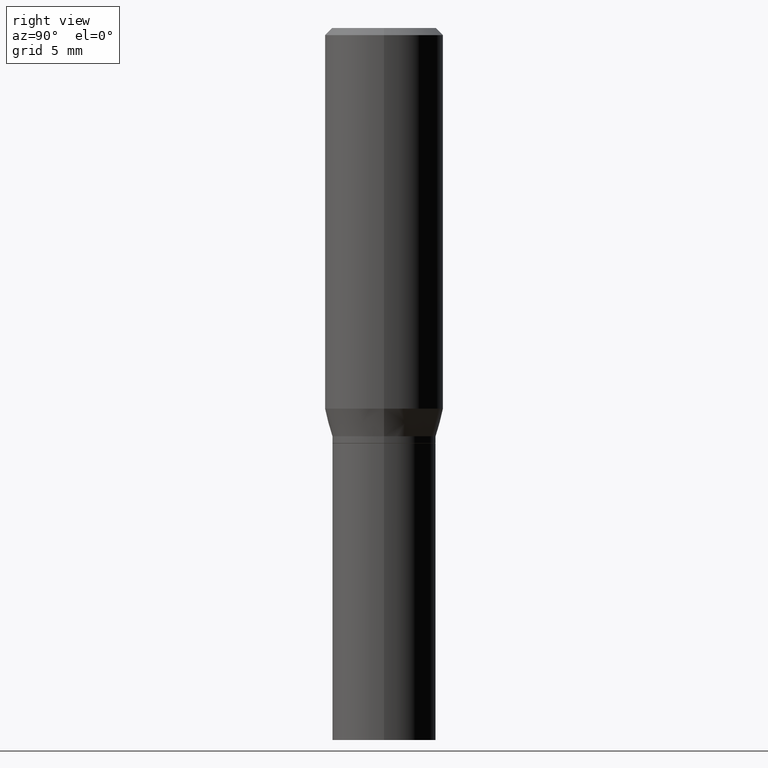
[diagram: clean part render]
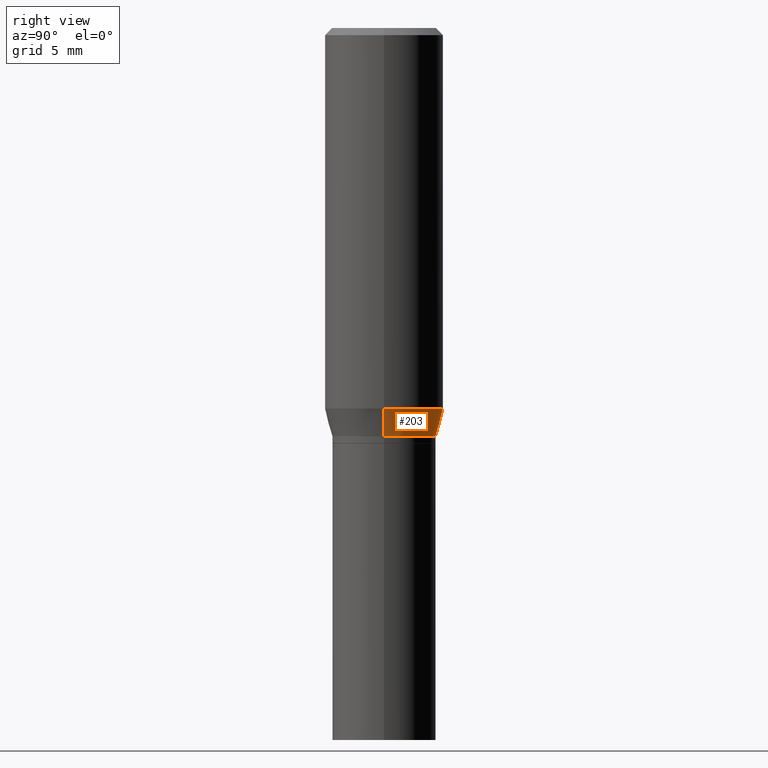
[diagram: same view with one face highlighted and labeled with its STEP entity id]
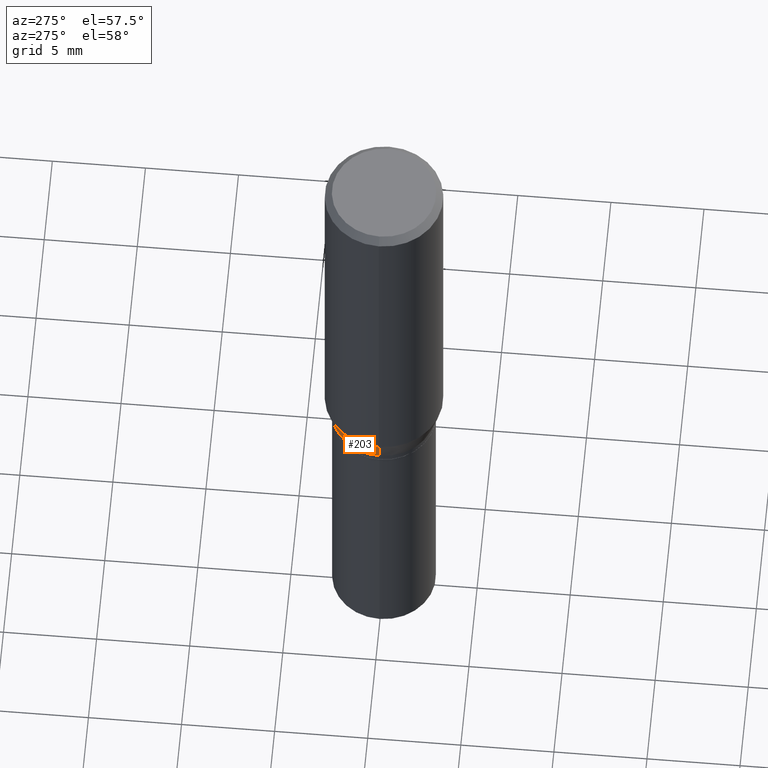
[diagram: same view with one face highlighted and labeled with its STEP entity id]
A machine part, right view. The second image highlights one B-rep face of the part: STEP entity #203.
A second angle (auxiliary view) of the same face is appended — the face is thin or edge-on in the first view.
In plain terms, the highlighted conical surface has half-angle 15 deg.
Its self-contained STEP definition (entity closure, byte-faithful):
#34 = VERTEX_POINT ( 'NONE', #192 ) ;
#35 = DIRECTION ( 'NONE',  ( 1.000000000000000000, -6.982962677686266711E-15, 0.000000000000000000 ) ) ;
#39 = LINE ( 'NONE', #426, #116 ) ;
#44 = ORIENTED_EDGE ( 'NONE', *, *, #46, .T. ) ;
#46 = EDGE_CURVE ( 'NONE', #34, #198, #225, .T. ) ;
#47 = EDGE_LOOP ( 'NONE', ( #44, #256, #381, #331 ) ) ;
#54 = CARTESIAN_POINT ( 'NONE',  ( -0.1094000000000000389, -2.068280856242386505E-15, -0.8600000000000000977 ) ) ;
#57 = LINE ( 'NONE', #448, #81 ) ;
#67 = AXIS2_PLACEMENT_3D ( 'NONE', #184, #111, #35 ) ;
#74 = AXIS2_PLACEMENT_3D ( 'NONE', #369, #441, #298 ) ;
#81 = VECTOR ( 'NONE', #278, 39.37007874015748143 ) ;
#90 = FACE_OUTER_BOUND ( 'NONE', #47, .T. ) ;
#111 = DIRECTION ( 'NONE',  ( -2.445468806185136597E-29, 3.491481338843145583E-15, 1.000000000000000000 ) ) ;
#116 = VECTOR ( 'NONE', #455, 39.37007874015748143 ) ;
#123 = VERTEX_POINT ( 'NONE', #382 ) ;
#157 = CARTESIAN_POINT ( 'NONE',  ( 2.103103173319217765E-29, -3.002673951405105651E-15, -0.8600000000000000977 ) ) ;
#184 = CARTESIAN_POINT ( 'NONE',  ( 1.960727997524297343E-29, -2.799399933701342964E-15, -0.8017800074019257872 ) ) ;
#192 = CARTESIAN_POINT ( 'NONE',  ( 0.1094000000000000389, -3.766610068343983617E-15, -0.8600000000000000977 ) ) ;
#198 = VERTEX_POINT ( 'NONE', #54 ) ;
#203 = ADVANCED_FACE ( 'NONE', ( #90 ), #246, .T. ) ;
#210 = CIRCLE ( 'NONE', #67, 0.1250000000000000000 ) ;
#225 = CIRCLE ( 'NONE', #305, 0.1094000000000000389 ) ;
#230 = EDGE_CURVE ( 'NONE', #34, #315, #39, .T. ) ;
#246 = CONICAL_SURFACE ( 'NONE', #74, 0.1094000000000000389, 0.2617993877991495744 ) ;
#256 = ORIENTED_EDGE ( 'NONE', *, *, #436, .T. ) ;
#278 = DIRECTION ( 'NONE',  ( -0.2588190451025209060, 5.211531920934547097E-15, 0.9659258262890682012 ) ) ;
#298 = DIRECTION ( 'NONE',  ( 1.000000000000000000, -6.982962677686266711E-15, 0.000000000000000000 ) ) ;
#304 = DIRECTION ( 'NONE',  ( -2.445468806185136597E-29, 3.491481338843145583E-15, 1.000000000000000000 ) ) ;
#305 = AXIS2_PLACEMENT_3D ( 'NONE', #157, #304, #391 ) ;
#315 = VERTEX_POINT ( 'NONE', #395 ) ;
#320 = EDGE_CURVE ( 'NONE', #315, #123, #210, .T. ) ;
#331 = ORIENTED_EDGE ( 'NONE', *, *, #230, .F. ) ;
#369 = CARTESIAN_POINT ( 'NONE',  ( 2.103103173319217765E-29, -3.002673951405105651E-15, -0.8600000000000000977 ) ) ;
#381 = ORIENTED_EDGE ( 'NONE', *, *, #320, .F. ) ;
#382 = CARTESIAN_POINT ( 'NONE',  ( -0.1250000000000000000, -1.911221514001217731E-15, -0.8017800074019257872 ) ) ;
#391 = DIRECTION ( 'NONE',  ( 1.000000000000000000, -6.982962677686266711E-15, 0.000000000000000000 ) ) ;
#395 = CARTESIAN_POINT ( 'NONE',  ( 0.1250000000000000000, -3.672270268412127091E-15, -0.8017800074019257872 ) ) ;
#426 = CARTESIAN_POINT ( 'NONE',  ( 0.1094000000000000389, -3.766610068343983617E-15, -0.8600000000000000977 ) ) ;
#436 = EDGE_CURVE ( 'NONE', #198, #123, #57, .T. ) ;
#441 = DIRECTION ( 'NONE',  ( -2.445468806185136597E-29, 3.491481338843145583E-15, 1.000000000000000000 ) ) ;
#448 = CARTESIAN_POINT ( 'NONE',  ( -0.1094000000000000389, -2.225340198483555672E-15, -0.8600000000000000977 ) ) ;
#455 = DIRECTION ( 'NONE',  ( 0.2588190451025209060, 1.565188264969625123E-15, 0.9659258262890682012 ) ) ;